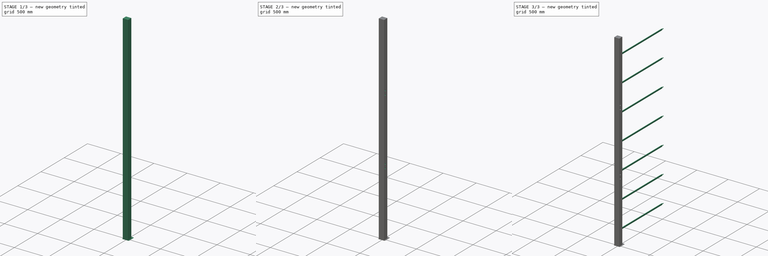
[diagram: build sequence overview — one tinted view per stage of 3, left to right]
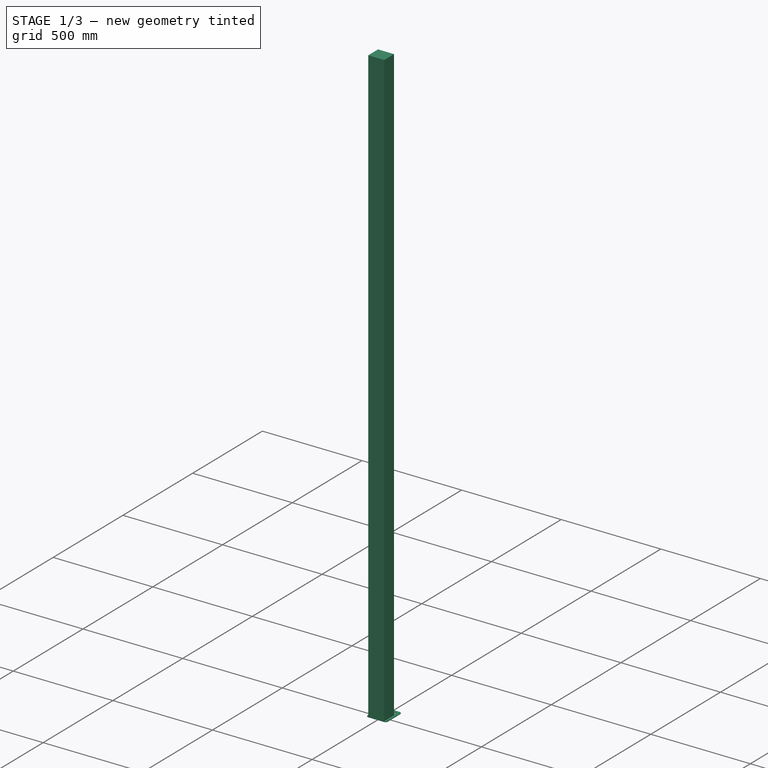
[diagram: stage 1 of 3 — iso view after this stage's code; geometry added in this stage tinted green]
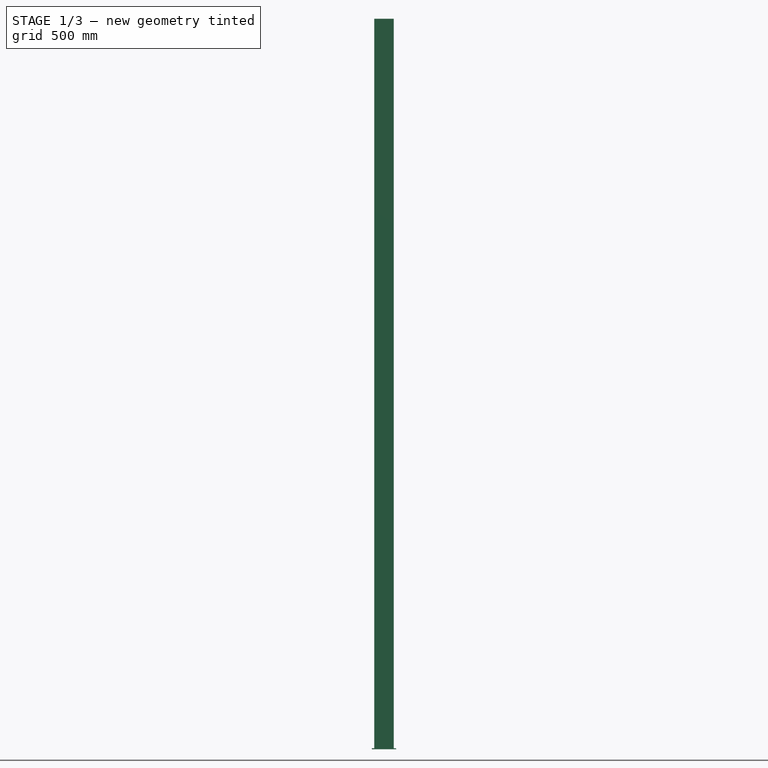
[diagram: stage 1 of 3 — front view after this stage's code; geometry added in this stage tinted green]
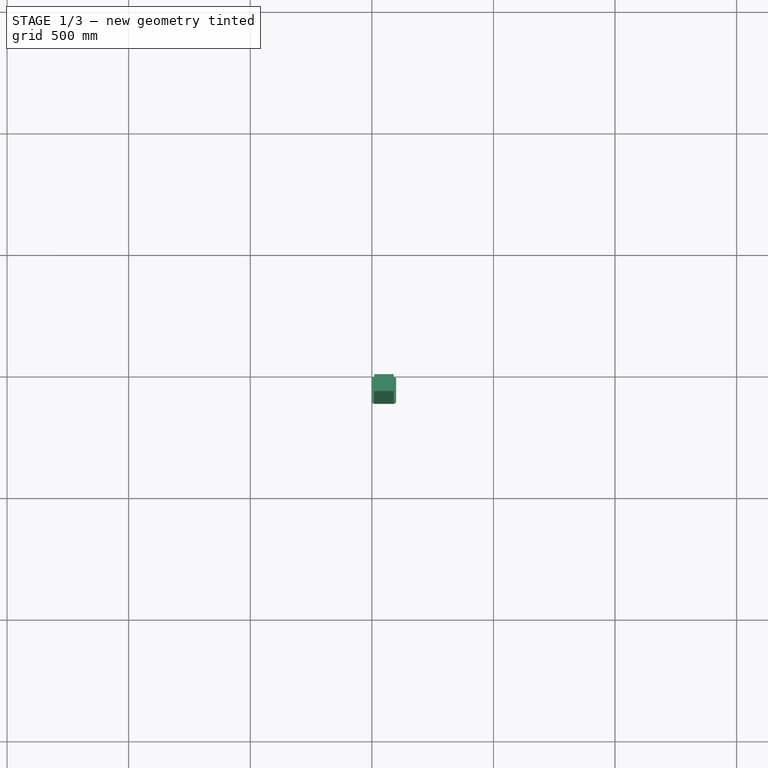
[diagram: stage 1 of 3 — top view after this stage's code; geometry added in this stage tinted green]
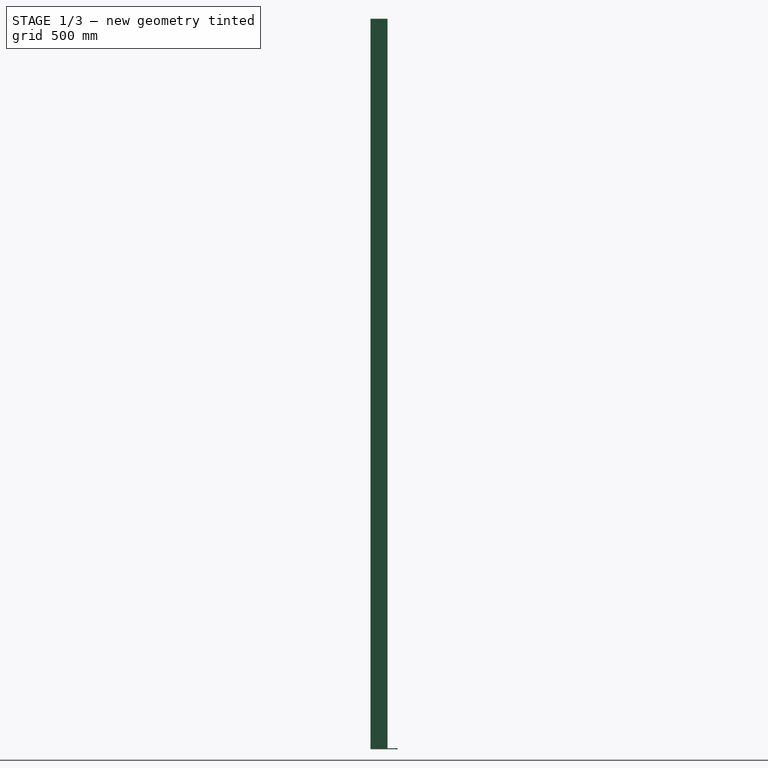
[diagram: stage 1 of 3 — right view after this stage's code; geometry added in this stage tinted green]
FCSTD DOCUMENT  (FreeCAD 0.21R33668 +26 (Git))
Label: stand_with_footplate_braces
License: All rights reserved
LicenseURL: https://en.wikipedia.org/wiki/All_rights_reserved
objects: Sketcher::SketchObject×6, PartDesign::Pad×4, PartDesign::Pocket×1, PartDesign::Body×1
note: 17 computed .brp shape members not serialized (recipe doc carries the construction recipe); baked Part::Feature solids carry a one-line shape summary decoded from their .brp

FEATURE [Sketcher::SketchObject] Sketch
  FullyConstrained = true
  MapMode = 5
  Support = -> [XY_Plane]
  sketch-geometry (15):
    g0: LineSegment StartX=10 StartY=-2.913e-13 StartZ=0 EndX=90 EndY=-2.913e-13 EndZ=0
    g1: LineSegment StartX=100 StartY=-10 StartZ=0 EndX=100 EndY=-101 EndZ=0
    g2: LineSegment StartX=90 StartY=-111 StartZ=0 EndX=10 EndY=-111 EndZ=0
    g3: LineSegment StartX=0 StartY=-101 StartZ=0 EndX=0 EndY=-10 EndZ=0
    g4: ArcOfCircle CenterX=10 CenterY=-10 CenterZ=0 NormalX=0 NormalY=0 NormalZ=1 AngleXU=0 Radius=10 StartAngle=1.5708 EndAngle=3.14159
    g5: GeomPoint X=0 Y=0 Z=0
    g6: ArcOfCircle CenterX=10 CenterY=-101 CenterZ=0 NormalX=0 NormalY=0 NormalZ=1 AngleXU=0 Radius=10 StartAngle=3.14159 EndAngle=4.71239
    g7: GeomPoint X=0 Y=-111 Z=0
    g8: ArcOfCircle CenterX=90 CenterY=-101 CenterZ=0 NormalX=0 NormalY=0 NormalZ=1 AngleXU=0 Radius=10 StartAngle=4.71239 EndAngle=6.28319
    g9: GeomPoint X=100 Y=-111 Z=0
    g10: ArcOfCircle CenterX=90 CenterY=-10 CenterZ=0 NormalX=0 NormalY=0 NormalZ=1 AngleXU=0 Radius=10 StartAngle=0 EndAngle=1.5708
    g11: GeomPoint X=100 Y=0 Z=0
    g12: Circle CenterX=20 CenterY=-20 CenterZ=0 NormalX=0 NormalY=0 NormalZ=1 AngleXU=0 Radius=6
    g13: Circle CenterX=50 CenterY=-20 CenterZ=0 NormalX=0 NormalY=0 NormalZ=1 AngleXU=0 Radius=6
    g14: Circle CenterX=80 CenterY=-20 CenterZ=0 NormalX=0 NormalY=0 NormalZ=1 AngleXU=0 Radius=6
  constraints (36):
    c: Horizontal(g0)
    c: Horizontal(g2)
    c: Vertical(g1)
    c: Vertical(g3)
    c: Coincident(g5,g-1)
    c: PointOnObject(g5,g0)
    c: PointOnObject(g5,g3)
    c: Tangent(g0,g4) = 1.5708
    c: Tangent(g3,g4) = 1.5708
    c: PointOnObject(g7,g3)
    c: PointOnObject(g7,g2)
    c: Tangent(g3,g6) = 1.5708
    c: Tangent(g2,g6) = 1.5708
    c: PointOnObject(g9,g2)
    c: PointOnObject(g9,g1)
    c: Tangent(g2,g8) = 1.5708
    c: Tangent(g1,g8) = 1.5708
    c: PointOnObject(g11,g1)
    c: PointOnObject(g11,g0)
    c: Tangent(g1,g10) = 1.5708
    c: Tangent(g0,g10) = 1.5708
    c: Equal(g4,g6)
    c: Equal(g4,g8)
    c: Equal(g4,g10)
    c: Radius(g4) = 10
    c: Distance(g5,g11) = 100
    c: Distance(g5,g7) = 111
    c: Equal(g12,g13)
    c: Equal(g12,g14)
    c: Diameter(g12) = 12
    c: Distance(g12,g0) = 20
    c: Distance(g13,g0) = 20
    c: Distance(g14,g0) = 20
    c: Distance(g14,g3) = 80
    c: Distance(g13,g3) = 50
    c: Distance(g12,g3) = 20
FEATURE [PartDesign::Pad] Pad
  Direction = (0,0,1)
  Length = 4
  Length2 = 10
  Profile = -> Sketch
  ReferenceAxis = -> Sketch [N_Axis]
  Type = 0
FEATURE [Sketcher::SketchObject] Sketch001
  ExternalGeometry = -> [Pad]
  FullyConstrained = true
  MapMode = 5
  Placement = pos=(0,0,4) rot=(0,0,1;0rad)
  Support = -> [Pad]
  sketch-geometry (4):
    g0: LineSegment StartX=10 StartY=-41 StartZ=0 EndX=90 EndY=-41 EndZ=0
    g1: LineSegment StartX=90 StartY=-41 StartZ=0 EndX=90 EndY=-111 EndZ=0
    g2: LineSegment StartX=90 StartY=-111 StartZ=0 EndX=10 EndY=-111 EndZ=0
    g3: LineSegment StartX=10 StartY=-111 StartZ=0 EndX=10 EndY=-41 EndZ=0
  constraints (12):
    c: Coincident(g0,g1)
    c: Coincident(g1,g2)
    c: Coincident(g2,g3)
    c: Coincident(g3,g0)
    c: Horizontal(g0)
    c: Horizontal(g2)
    c: Vertical(g1)
    c: Vertical(g3)
    c: Distance(g1,g-3) = 10
    c: DistanceY(g-1,g0) = -41
    c: Distance(g3) = 70
    c: Distance(g0) = 80
FEATURE [PartDesign::Pad] Pad001
  BaseFeature = -> Pad
  Direction = (0,0,1)
  Length = 3000
  Length2 = 10
  Profile = -> Sketch001
  ReferenceAxis = -> Sketch001 [N_Axis]
  Type = 0
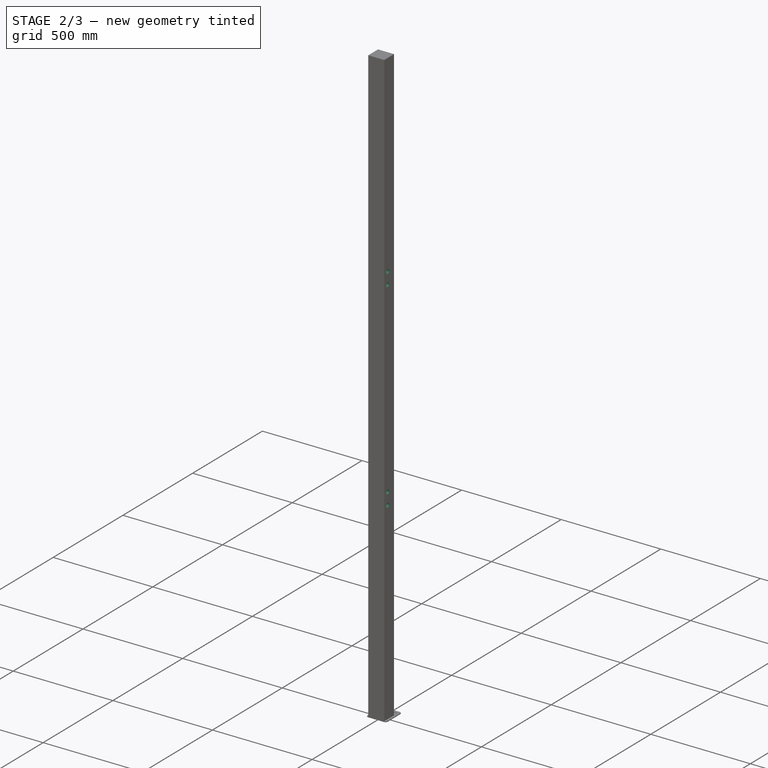
[diagram: stage 2 of 3 — iso view after this stage's code; geometry added in this stage tinted green]
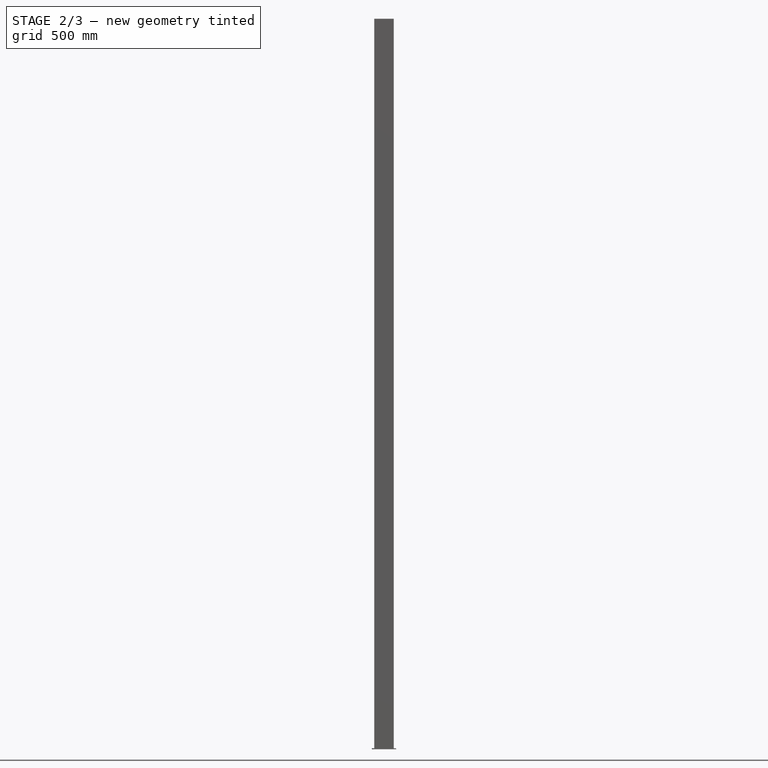
[diagram: stage 2 of 3 — front view after this stage's code; geometry added in this stage tinted green]
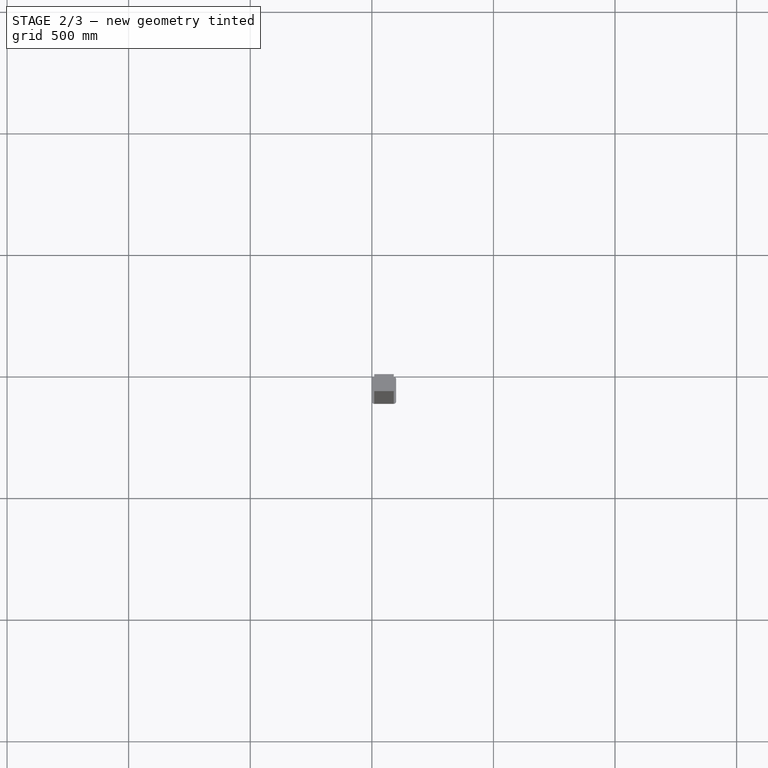
[diagram: stage 2 of 3 — top view after this stage's code; geometry added in this stage tinted green]
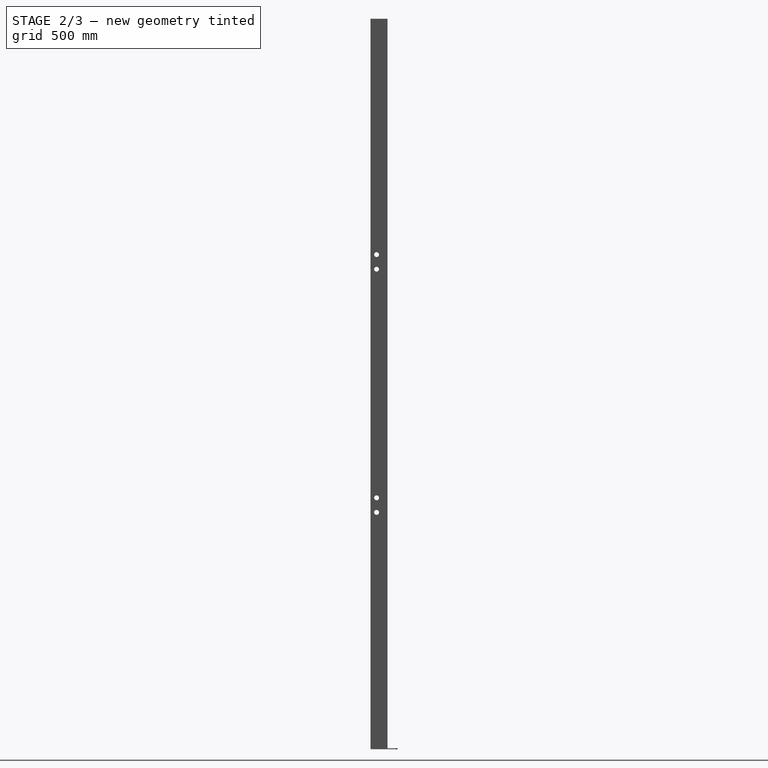
[diagram: stage 2 of 3 — right view after this stage's code; geometry added in this stage tinted green]
FEATURE [Sketcher::SketchObject] Sketch002
  ExternalGeometry = -> [Pad001]
  FullyConstrained = true
  MapMode = 5
  Placement = pos=(90,0,0) rot=(0.57735,0.57735,0.57735;2.0944rad)
  Support = -> [Pad001]
  sketch-geometry (4):
    g0: Circle CenterX=-86 CenterY=1034 CenterZ=0 NormalX=0 NormalY=0 NormalZ=1 AngleXU=0 Radius=10
    g1: Circle CenterX=-86 CenterY=974 CenterZ=0 NormalX=0 NormalY=0 NormalZ=1 AngleXU=0 Radius=10
    g2: Circle CenterX=-86 CenterY=2034 CenterZ=0 NormalX=0 NormalY=0 NormalZ=1 AngleXU=0 Radius=10
    g3: Circle CenterX=-86 CenterY=1974 CenterZ=0 NormalX=0 NormalY=0 NormalZ=1 AngleXU=0 Radius=10
  constraints (12):
    c: Distance(g0,g-7) = 1030
    c: Distance(g1,g-4) = 25
    c: Distance(g0,g-4) = 25
    c: Equal(g1,g0)
    c: Diameter(g1) = 20
    c: Distance(g0,g1) = 60
    c: Distance(g2,g-4) = 25
    c: Distance(g3,g-4) = 25
    c: Distance(g3,g2) = 60
    c: Equal(g2,g3)
    c: Diameter(g2) = 20
    c: Distance(g2,g1) = 1060
FEATURE [PartDesign::Pocket] Pocket
  BaseFeature = -> Pad001
  Direction = (-1,0,0)
  Length = 80
  Length2 = 5
  Profile = -> Sketch002
  ReferenceAxis = -> Sketch002 [N_Axis]
  Type = 0
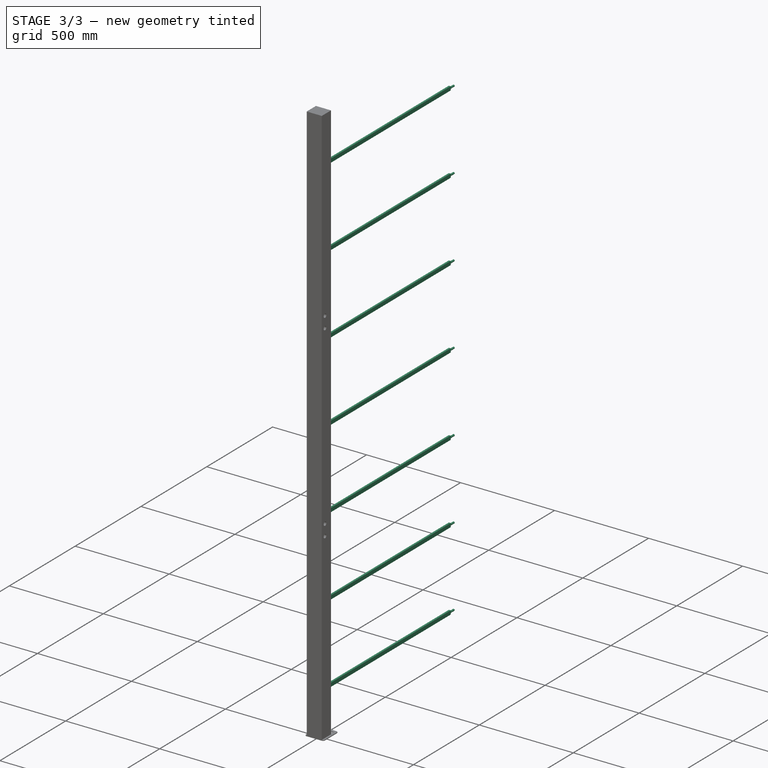
[diagram: stage 3 of 3 — iso view after this stage's code; geometry added in this stage tinted green]
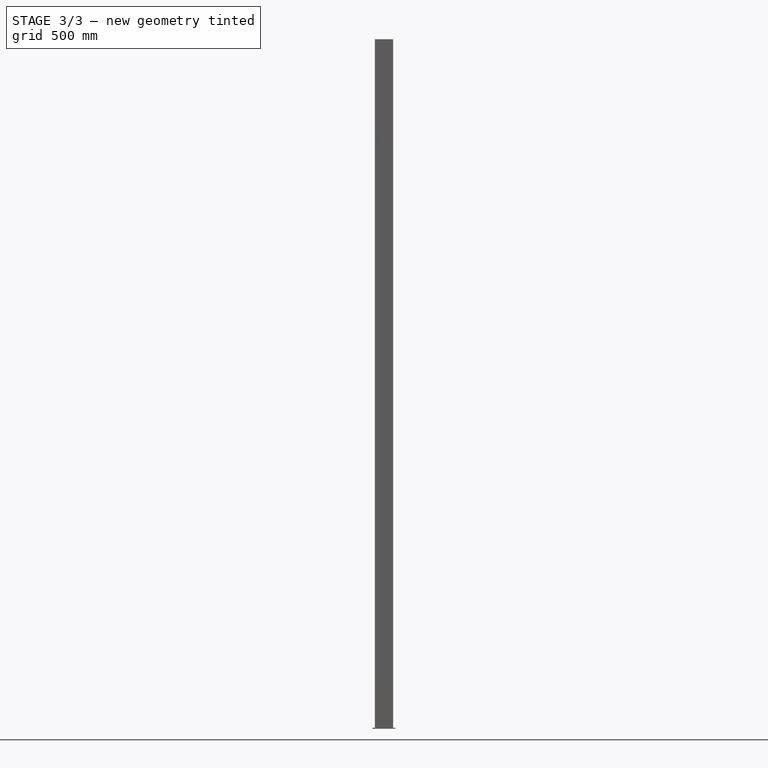
[diagram: stage 3 of 3 — front view after this stage's code; geometry added in this stage tinted green]
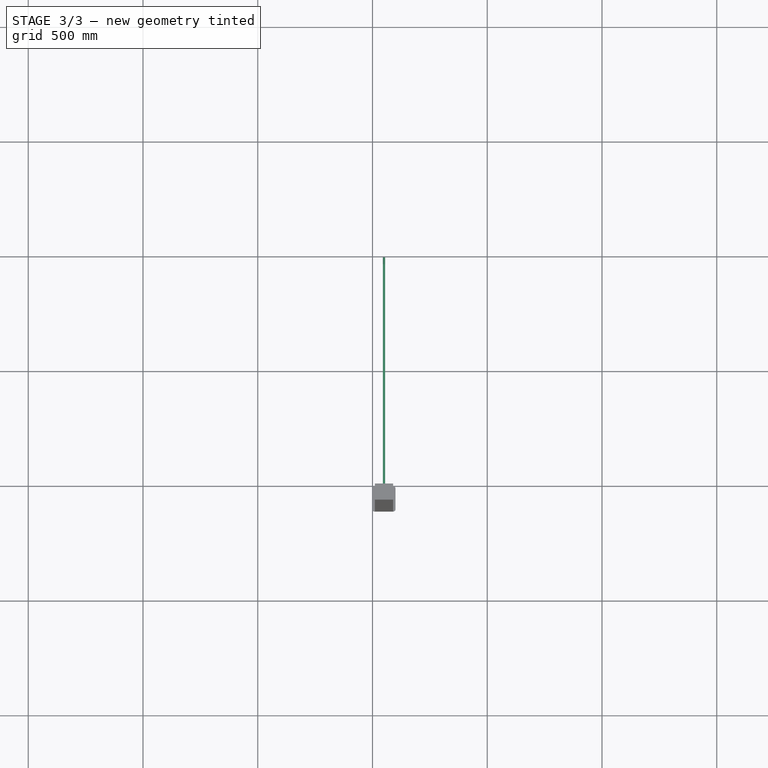
[diagram: stage 3 of 3 — top view after this stage's code; geometry added in this stage tinted green]
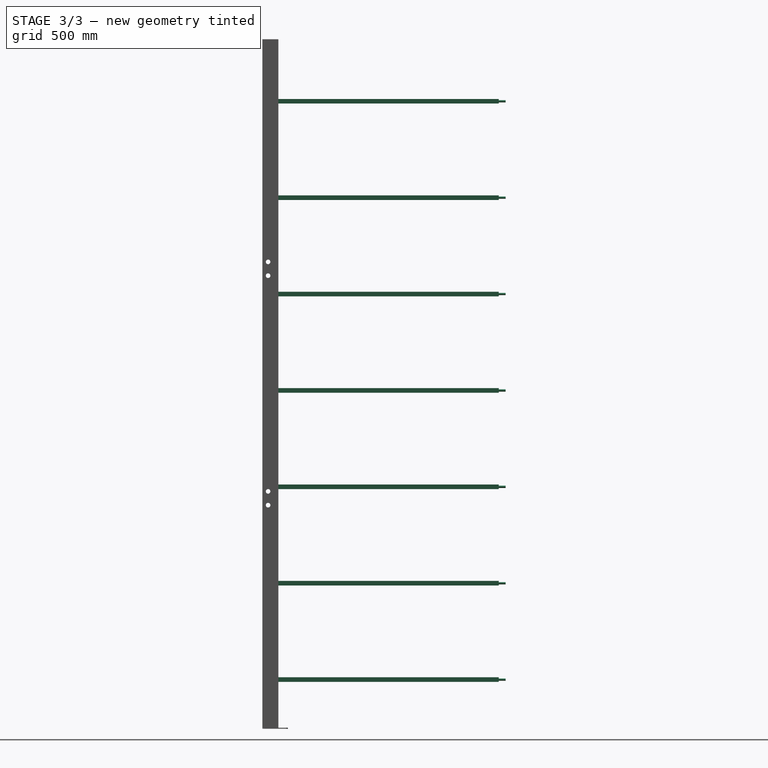
[diagram: stage 3 of 3 — right view after this stage's code; geometry added in this stage tinted green]
FEATURE [Sketcher::SketchObject] Sketch003
  ExternalGeometry = -> [Pocket]
  FullyConstrained = true
  MapMode = 5
  Placement = pos=(10,0,0) rot=(0.57735,-0.57735,-0.57735;2.0944rad)
  Support = -> [Pocket]
  sketch-geometry (4):
    g0: Circle CenterX=66 CenterY=1034 CenterZ=0 NormalX=0 NormalY=0 NormalZ=1 AngleXU=0 Radius=10
    g1: Circle CenterX=66 CenterY=974 CenterZ=0 NormalX=0 NormalY=0 NormalZ=1 AngleXU=0 Radius=10
    g2: Circle CenterX=66 CenterY=2034 CenterZ=0 NormalX=0 NormalY=0 NormalZ=1 AngleXU=0 Radius=10
    g3: Circle CenterX=66 CenterY=1974 CenterZ=0 NormalX=0 NormalY=0 NormalZ=1 AngleXU=0 Radius=10
  constraints (12):
    c: Distance(g0,g-5) = 25
    c: Distance(g1,g-5) = 25
    c: Distance(g0,g-3) = 1030
    c: Distance(g0,g1) = 60
    c: Equal(g1,g0)
    c: Diameter(g1) = 20
    c: Distance(g2,g-5) = 25
    c: Distance(g3,g-5) = 25
    c: Distance(g2,g3) = 60
    c: Distance(g2,g1) = 1060
    c: Equal(g3,g2)
    c: Diameter(g3) = 20
FEATURE [Sketcher::SketchObject] Sketch004
  ExternalGeometry = -> [Pocket]
  FullyConstrained = true
  MapMode = 5
  Placement = pos=(0,-41,0) rot=(0,0.707107,0.707107;3.14159rad)
  Support = -> [Pocket]
  sketch-geometry (29):
    g0: LineSegment StartX=-50 StartY=4 StartZ=0 EndX=-50 EndY=3004 EndZ=0
    g1: LineSegment StartX=-55 StartY=224 StartZ=0 EndX=-45 EndY=224 EndZ=0
    g2: LineSegment StartX=-45 StartY=224 StartZ=0 EndX=-45 EndY=204 EndZ=0
    g3: LineSegment StartX=-45 StartY=204 StartZ=0 EndX=-55 EndY=204 EndZ=0
    g4: LineSegment StartX=-55 StartY=204 StartZ=0 EndX=-55 EndY=224 EndZ=0
    g5: LineSegment StartX=-55 StartY=644 StartZ=0 EndX=-45 EndY=644 EndZ=0
    g6: LineSegment StartX=-45 StartY=644 StartZ=0 EndX=-45 EndY=624 EndZ=0
    g7: LineSegment StartX=-45 StartY=624 StartZ=0 EndX=-55 EndY=624 EndZ=0
    g8: LineSegment StartX=-55 StartY=624 StartZ=0 EndX=-55 EndY=644 EndZ=0
    g9: LineSegment StartX=-55 StartY=1044 StartZ=0 EndX=-45 EndY=1044 EndZ=0
    g10: LineSegment StartX=-45 StartY=1044 StartZ=0 EndX=-45 EndY=1064 EndZ=0
    g11: LineSegment StartX=-45 StartY=1064 StartZ=0 EndX=-55 EndY=1064 EndZ=0
    g12: LineSegment StartX=-55 StartY=1064 StartZ=0 EndX=-55 EndY=1044 EndZ=0
    g13: LineSegment StartX=-55 StartY=1484 StartZ=0 EndX=-45 EndY=1484 EndZ=0
    g14: LineSegment StartX=-45 StartY=1484 StartZ=0 EndX=-45 EndY=1464 EndZ=0
    g15: LineSegment StartX=-45 StartY=1464 StartZ=0 EndX=-55 EndY=1464 EndZ=0
    g16: LineSegment StartX=-55 StartY=1464 StartZ=0 EndX=-55 EndY=1484 EndZ=0
    g17: LineSegment StartX=-55 StartY=1904 StartZ=0 EndX=-45 EndY=1904 EndZ=0
    g18: LineSegment StartX=-45 StartY=1904 StartZ=0 EndX=-45 EndY=1884 EndZ=0
    g19: LineSegment StartX=-45 StartY=1884 StartZ=0 EndX=-55 EndY=1884 EndZ=0
    g20: LineSegment StartX=-55 StartY=1884 StartZ=0 EndX=-55 EndY=1904 EndZ=0
    g21: LineSegment StartX=-55 StartY=2324 StartZ=0 EndX=-45 EndY=2324 EndZ=0
    g22: LineSegment StartX=-45 StartY=2324 StartZ=0 EndX=-45 EndY=2304 EndZ=0
    g23: LineSegment StartX=-45 StartY=2304 StartZ=0 EndX=-55 EndY=2304 EndZ=0
    g24: LineSegment StartX=-55 StartY=2304 StartZ=0 EndX=-55 EndY=2324 EndZ=0
    g25: LineSegment StartX=-55 StartY=2724 StartZ=0 EndX=-45 EndY=2724 EndZ=0
    g26: LineSegment StartX=-45 StartY=2724 StartZ=0 EndX=-45 EndY=2744 EndZ=0
    g27: LineSegment StartX=-45 StartY=2744 StartZ=0 EndX=-55 EndY=2744 EndZ=0
    g28: LineSegment StartX=-55 StartY=2744 StartZ=0 EndX=-55 EndY=2724 EndZ=0
  constraints (88):
    c: PointOnObject(g0,g-6)
    c: Vertical(g0)
    c: Distance(g0) = 3000
    c: Distance(g0,g-6) = 40
    c: Coincident(g1,g2)
    c: Coincident(g2,g3)
    c: Coincident(g3,g4)
    c: Coincident(g4,g1)
    c: Horizontal(g1)
    c: Horizontal(g3)
    c: Vertical(g2)
    c: Vertical(g4)
    c: Coincident(g5,g6)
    c: Coincident(g6,g7)
    c: Coincident(g7,g8)
    c: Coincident(g8,g5)
    c: Horizontal(g5)
    c: Horizontal(g7)
    c: Vertical(g6)
    c: Vertical(g8)
    c: Coincident(g9,g10)
    c: Coincident(g10,g11)
    c: Coincident(g11,g12)
    c: Coincident(g12,g9)
    c: Horizontal(g9)
    c: Horizontal(g11)
    c: Vertical(g10)
    c: Vertical(g12)
    c: Coincident(g13,g14)
    c: Coincident(g14,g15)
    c: Coincident(g15,g16)
    c: Coincident(g16,g13)
    c: Horizontal(g13)
    c: Horizontal(g15)
    c: Vertical(g14)
    c: Vertical(g16)
    c: Coincident(g17,g18)
    c: Coincident(g18,g19)
    c: Coincident(g19,g20)
    c: Coincident(g20,g17)
    c: Horizontal(g17)
    c: Horizontal(g19)
    c: Vertical(g18)
    c: Vertical(g20)
    c: Coincident(g21,g22)
    c: Coincident(g22,g23)
    c: Coincident(g23,g24)
    c: Coincident(g24,g21)
    c: Horizontal(g21)
    c: Horizontal(g23)
    c: Vertical(g22)
    c: Vertical(g24)
    c: Coincident(g25,g26)
    c: Coincident(g26,g27)
    c: Coincident(g27,g28)
    c: Coincident(g28,g25)
    c: Horizontal(g25)
    c: Horizontal(g27)
    c: Vertical(g26)
    c: Vertical(g28)
    c: Equal(g3,g7)
    c: Equal(g7,g11)
    c: Equal(g11,g15)
    c: Equal(g15,g19)
    c: Equal(g19,g23)
    c: Equal(g23,g27)
    c: Distance(g3) = 10
    c: Distance(g25,g0) = 5
    c: Distance(g21,g0) = 5
    c: Distance(g17,g0) = 5
    c: Distance(g13,g0) = 5
    c: Distance(g9,g0) = 5
    c: Distance(g5,g0) = 5
    c: Distance(g1,g0) = 5
    c: Distance(g4) = 20
    c: Equal(g4,g8)
    c: Equal(g8,g12)
    c: Equal(g12,g16)
    c: Equal(g16,g20)
    c: Equal(g20,g24)
    c: Equal(g24,g28)
    c: Distance(g2,g-6) = 200
    c: Distance(g1,g7) = 400
    c: Distance(g9,g5) = 400
    c: Distance(g11,g15) = 400
    c: Distance(g13,g19) = 400
    c: Distance(g17,g23) = 400
    c: Distance(g21,g25) = 400
FEATURE [PartDesign::Pad] Pad002
  BaseFeature = -> Pocket
  Direction = (0,1,-2e-16)
  Length = 960
  Length2 = 10
  Profile = -> Sketch004
  ReferenceAxis = -> Sketch004 [N_Axis]
  Type = 0
FEATURE [Sketcher::SketchObject] Sketch005
  ExternalGeometry = -> [Pad002]
  FullyConstrained = true
  MapMode = 5
  Placement = pos=(0,919,-2.046e-13) rot=(0,0.707107,0.707107;3.14159rad)
  Support = -> [Pad002]
  sketch-geometry (8):
    g0: LineSegment StartX=-50 StartY=0 StartZ=0 EndX=-50 EndY=3000 EndZ=0
    g1: Circle CenterX=-50 CenterY=1474 CenterZ=0 NormalX=0 NormalY=0 NormalZ=1 AngleXU=0 Radius=5
    g2: Circle CenterX=-50 CenterY=1054 CenterZ=0 NormalX=0 NormalY=0 NormalZ=1 AngleXU=0 Radius=5
    g3: Circle CenterX=-50 CenterY=214 CenterZ=0 NormalX=0 NormalY=0 NormalZ=1 AngleXU=0 Radius=5
    g4: Circle CenterX=-50 CenterY=634 CenterZ=0 NormalX=0 NormalY=0 NormalZ=1 AngleXU=0 Radius=5
    g5: Circle CenterX=-50 CenterY=1894 CenterZ=0 NormalX=0 NormalY=0 NormalZ=1 AngleXU=0 Radius=5
    g6: Circle CenterX=-50 CenterY=2314 CenterZ=0 NormalX=0 NormalY=0 NormalZ=1 AngleXU=0 Radius=5
    g7: Circle CenterX=-50 CenterY=2734 CenterZ=0 NormalX=0 NormalY=0 NormalZ=1 AngleXU=0 Radius=5
  constraints (20):
    c: PointOnObject(g0,g-1)
    c: Vertical(g0)
    c: Distance(g0) = 3000
    c: Distance(g-5,g0) = 5
    c: PointOnObject(g1,g0)
    c: PointOnObject(g2,g0)
    c: PointOnObject(g3,g0)
    c: PointOnObject(g4,g0)
    c: PointOnObject(g5,g0)
    c: PointOnObject(g6,g0)
    c: PointOnObject(g7,g0)
    c: Equal(g1, g2-g7) x6
    c: Radius(g1) = 5
    c: Distance(g7,g-29) = 10
    c: Distance(g6,g-28) = 10
    c: Distance(g5,g-21) = 10
    c: Distance(g1,g-19) = 10
    c: Distance(g2,g-14) = 10
    c: Distance(g4,g-9) = 10
    c: Distance(g3,g-5) = 10
FEATURE [PartDesign::Pad] Pad003
  BaseFeature = -> Pad002
  Direction = (0,1,-2e-16)
  Length = 30
  Length2 = 10
  Profile = -> Sketch005
  ReferenceAxis = -> Sketch005 [N_Axis]
  Type = 0
FEATURE [PartDesign::Body] Body
  Group = -> [Sketch,Pad,Sketch001,Pad001,Sketch002,Pocket,Sketch003,Sketch004,Pad002,Sketch005,Pad003]
  Origin = -> Origin
  Tip = -> Pad003
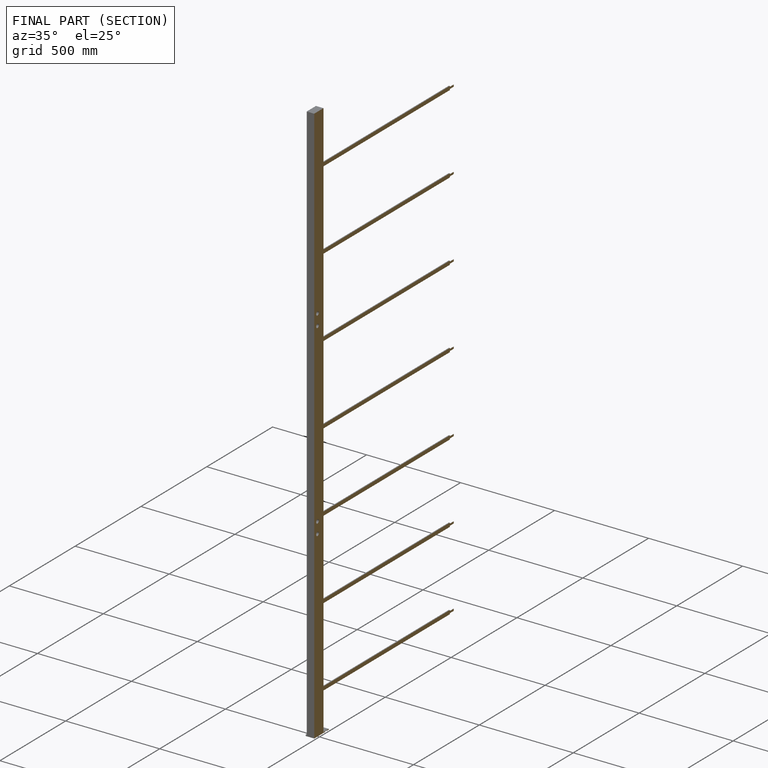
[diagram: finished part — half-section view (interior)]
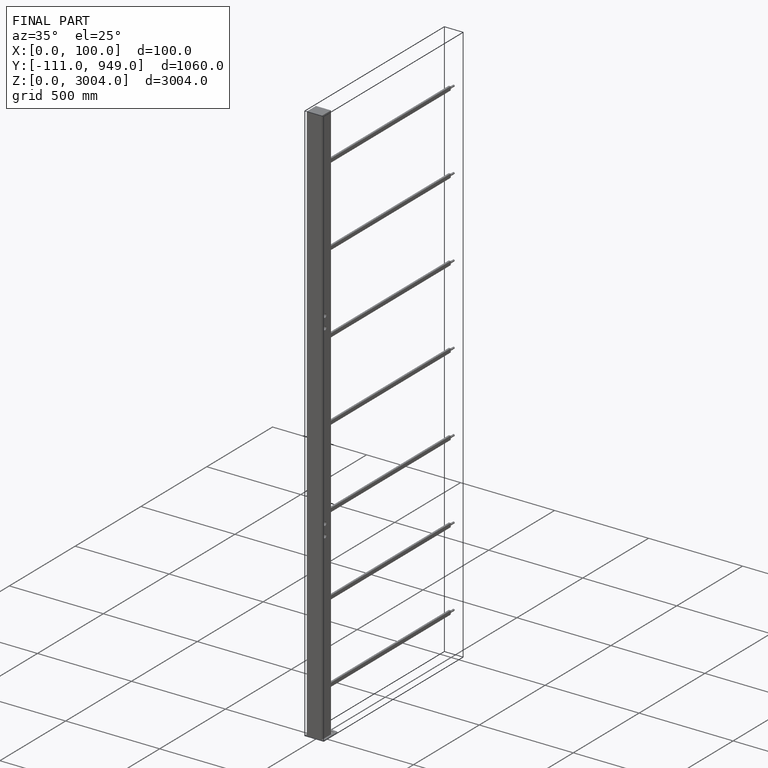
[diagram: finished part — iso view with bounding-box wireframe]
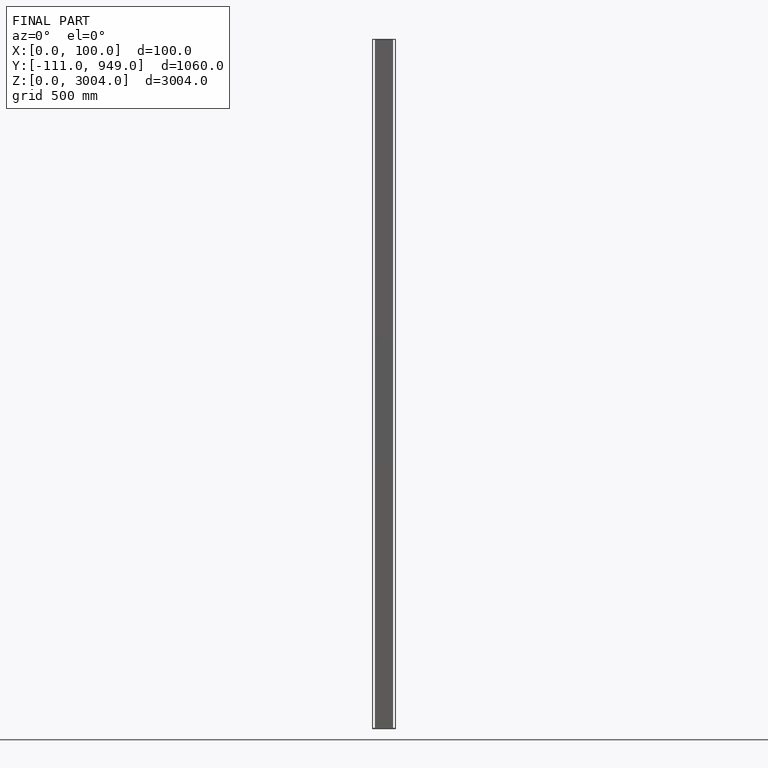
[diagram: finished part — front view with bounding-box wireframe]
